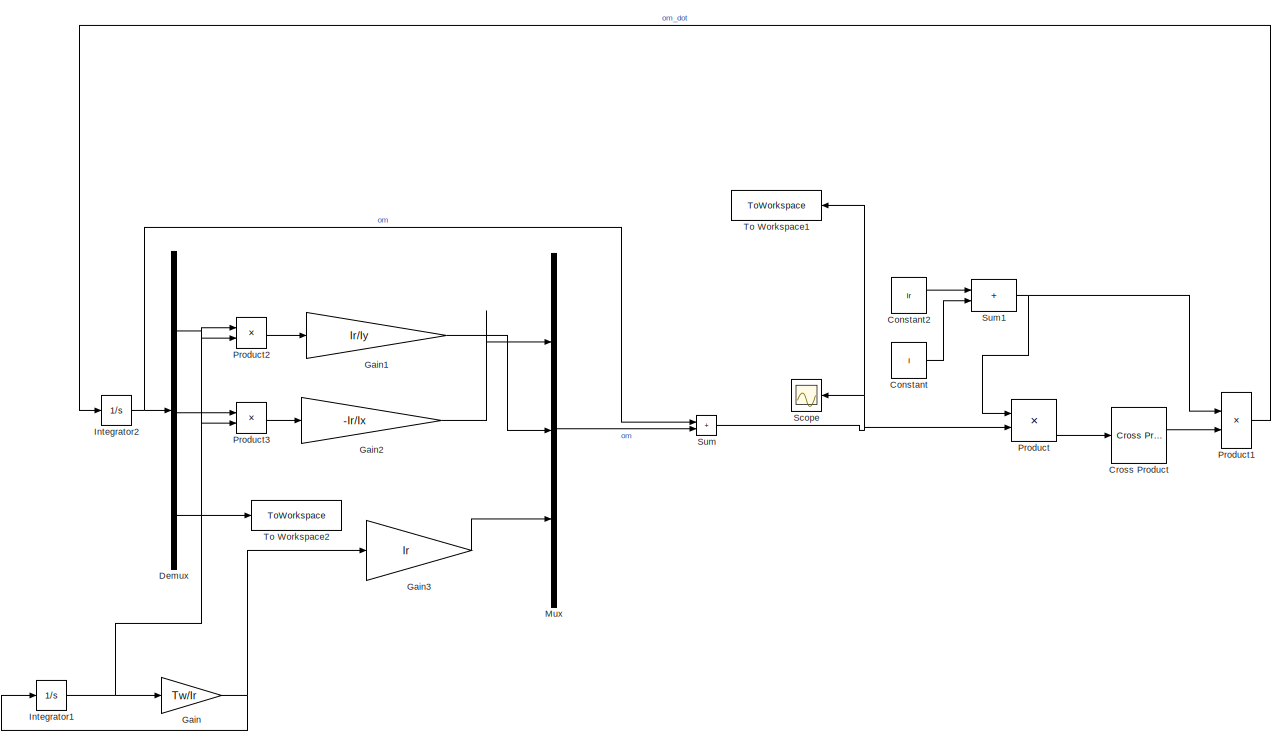
[diagram: root canvas - part 1/2, left side, full height]
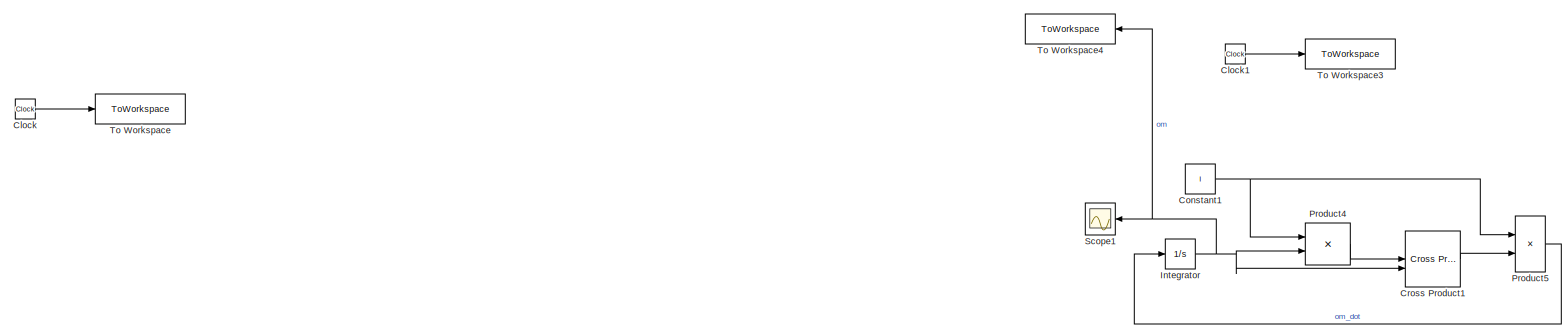
[diagram: root canvas - part 2/2, middle right region]
MODEL slx_77b3517f7e67
KIND model
CONFIG AbsTol = auto
CONFIG EnableMultiTasking = off
CONFIG FixedStep = auto
CONFIG MaxStep = auto
CONFIG MinStep = auto
CONFIG RelTol = 1e-3
CONFIG SampleTimeConstraint = Unconstrained
CONFIG SolverName = VariableStepAuto
CONFIG StartTime = 0.0
CONFIG StopTime = 10.0
BLOCK [Clock] Clock
BLOCK [Clock] Clock1
BLOCK [Constant] Constant
  Value = I
BLOCK [Constant] Constant1
  Value = I
BLOCK [Constant] Constant2
  Value = Ir
BLOCK [Reference] Cross Product  REF=matrix_library/Cross Product
  LibrarySourceBlock = simulink/Matrix\nOperations/Cross Product
  SourceBlock = matrix_library/Cross Product
  SourceType = CrossProduct
BLOCK [Reference] Cross Product1  REF=matrix_library/Cross Product
  LibrarySourceBlock = simulink/Matrix\nOperations/Cross Product
  SourceBlock = matrix_library/Cross Product
  SourceType = CrossProduct
BLOCK [Demux] Demux
  Outputs = 3
BLOCK [Gain] Gain
  Gain = Tw/Ir
BLOCK [Gain] Gain1
  Gain = Ir/Iy
BLOCK [Gain] Gain2
  Gain = -Ir/Ix
BLOCK [Gain] Gain3
  Gain = Ir
BLOCK [Integrator] Integrator
  InitialCondition = om_0
BLOCK [Integrator] Integrator1
  InitialCondition = om_r
BLOCK [Integrator] Integrator2
  InitialCondition = om_0
BLOCK [Mux] Mux
  DisplayOption = bar
  Inputs = 3
BLOCK [Product] Product
  Multiplication = Matrix(*)
BLOCK [Product] Product1
  Inputs = /*
  Multiplication = Matrix(*)
BLOCK [Product] Product2
BLOCK [Product] Product3
BLOCK [Product] Product4
  Multiplication = Matrix(*)
BLOCK [Product] Product5
  Inputs = /*
  Multiplication = Matrix(*)
BLOCK [Scope] Scope
  Floating = off
  NameLocation = top
  NumInputPorts = 1
  ScopeSpecificationString = Simulink.scopes.TimeScopeBlockCfg('CurrentConfiguration', extmgr.ConfigurationSet(extmgr.Configuration('Core','General UI',true),extmgr.Configuration('Core','Source UI',true),extmgr.Configuration('Sources','WiredSimulink',true),extmgr.Configuration('Visuals','Time Domain',true,'SerializedDisplays',{struct('MinYLimReal','-7.85496','MaxYLimReal','7.8553','YLabelReal','','MinYLimMag','0.00000','MaxYL...<+1316ch>
BLOCK [Scope] Scope1
  Floating = off
  NameLocation = top
  NumInputPorts = 1
  ScopeSpecificationString = Simulink.scopes.TimeScopeBlockCfg('CurrentConfiguration', extmgr.ConfigurationSet(extmgr.Configuration('Core','General UI',true),extmgr.Configuration('Core','Source UI',true),extmgr.Configuration('Sources','WiredSimulink',true,'DataLoggingVariableName','ScopeData1'),extmgr.Configuration('Visuals','Time Domain',true,'SerializedDisplays',{struct('MinYLimReal','-7.85496','MaxYLimReal','7.8553','YLabe...<+1355ch>
BLOCK [Sum] Sum
  IconShape = rectangular
BLOCK [Sum] Sum1
  IconShape = rectangular
  Inputs = |++
BLOCK [ToWorkspace] To Workspace
  FixptAsFi = on
  MaxDataPoints = inf
  SampleTime = -1
  VariableName = time
BLOCK [ToWorkspace] To Workspace1
  FixptAsFi = on
  MaxDataPoints = inf
  NameLocation = top
  SampleTime = -1
  VariableName = omega
BLOCK [ToWorkspace] To Workspace2
  FixptAsFi = on
  MaxDataPoints = inf
  SampleTime = -1
  VariableName = simout
BLOCK [ToWorkspace] To Workspace3
  FixptAsFi = on
  MaxDataPoints = inf
  SampleTime = -1
  SaveFormat = Timeseries
  VariableName = time1
BLOCK [ToWorkspace] To Workspace4
  FixptAsFi = on
  MaxDataPoints = inf
  NameLocation = top
  SampleTime = -1
  SaveFormat = Timeseries
  VariableName = omega1
LINE Clock1:1 -> To Workspace3:1
LINE Clock:1 -> To Workspace:1
NET Constant1:1 -> Product4:1, Product5:1
LINE Constant2:1 -> Sum1:1
LINE Constant:1 -> Sum1:2
LINE Cross Product1:1 -> Product5:2
LINE Cross Product:1 -> Product1:2
LINE Demux:1 -> Product2:1
LINE Demux:2 -> Product3:1
LINE Demux:3 -> To Workspace2:1
LINE Gain1:1 -> Mux:2
LINE Gain2:1 -> Mux:1
LINE Gain3:1 -> Mux:3
NET Gain:1 -> Gain3:1, Integrator1:1
NET Integrator1:1 -> Gain:1, Product2:2, Product3:2
NET Integrator2:1 -> Demux:1, Sum:1
NET Integrator:1 -> Cross Product1:2, Product4:2, Scope1:1, To Workspace4:1
LINE Mux:1 -> Sum:2
LINE Product1:1 -> Integrator2:1
LINE Product2:1 -> Gain1:1
LINE Product3:1 -> Gain2:1
LINE Product4:1 -> Cross Product1:1
LINE Product5:1 -> Integrator:1
LINE Product:1 -> Cross Product:1
NET Sum1:1 -> Product1:1, Product:1
NET Sum:1 -> Product:2, Scope:1, To Workspace1:1
note: NET lines group one-source signal fan-out (src -> all destinations, sorted); 1:1 wires keep LINE
